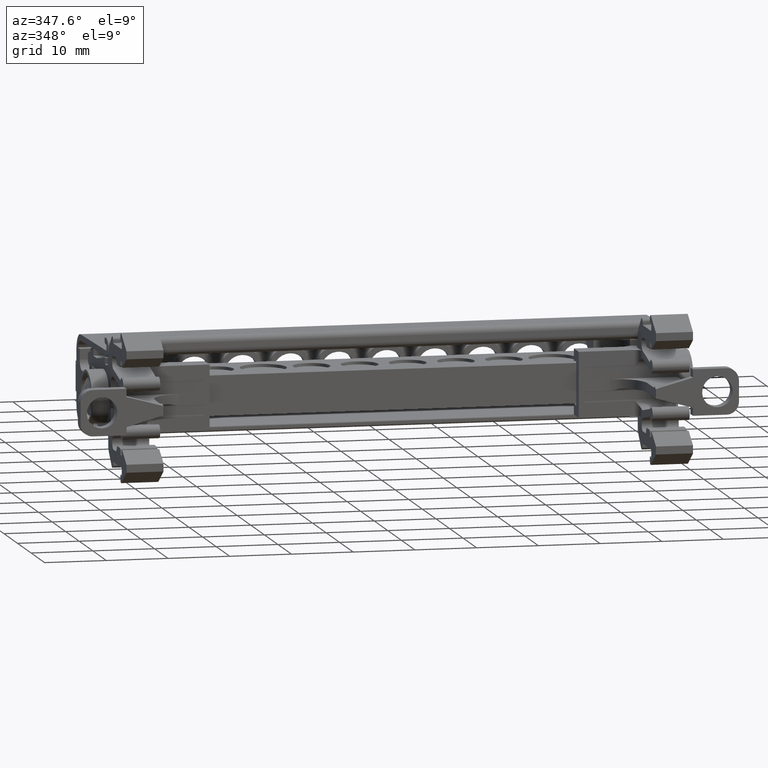
[diagram: clean part render]
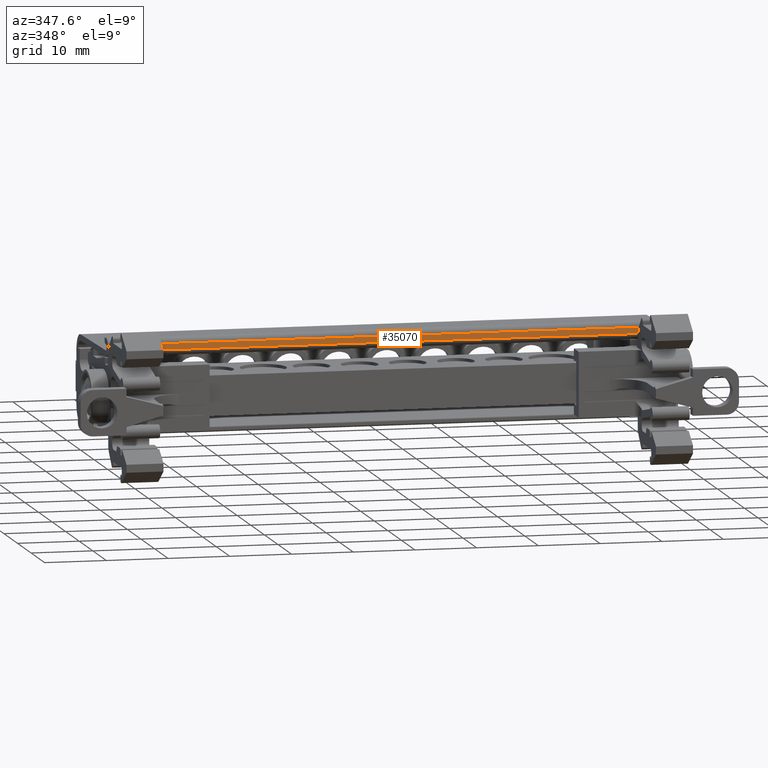
[diagram: same view with one face highlighted and labeled with its STEP entity id]
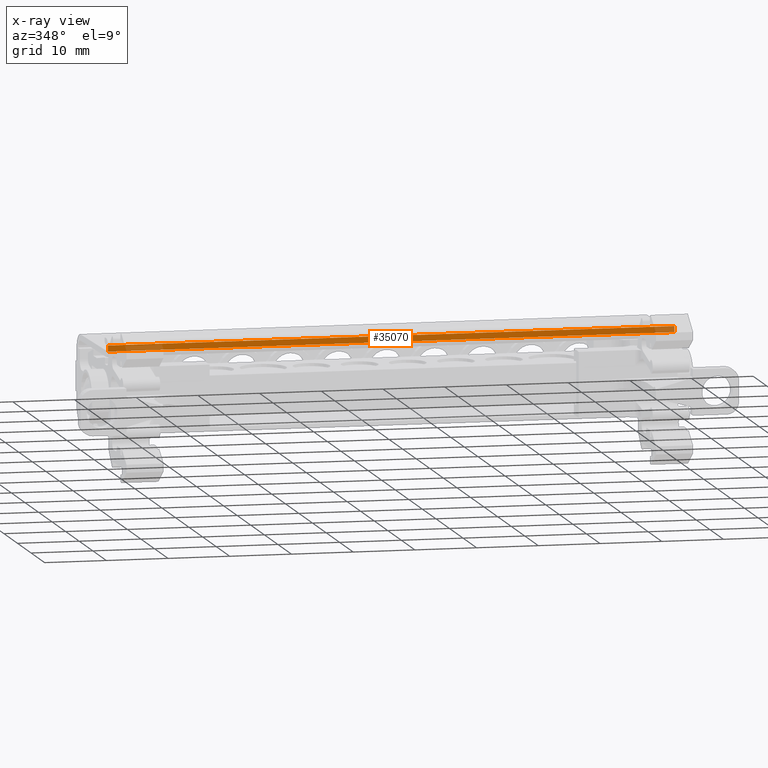
[diagram: x-ray of the same camera — body ghosted, the highlighted face saturated]
A machine part, auxiliary view. The second image highlights one B-rep face of the part: STEP entity #35070.
The next image is the same camera in x-ray: the body ghosted, the highlighted face saturated — about 9% of this face is hidden behind the body in this view.
In plain terms, the highlighted planar face has unit normal (-0, 1, -0).
Its self-contained STEP definition (entity closure, byte-faithful):
#9746 = FACE_OUTER_BOUND ( 'NONE', #20304, .T. ) ;
#9749 = CARTESIAN_POINT ( 'NONE',  ( -84.51615406934662600, -44.98918772838287300, 103.5709478047560700 ) ) ;
#9776 = DIRECTION ( 'NONE',  ( 0.0000000000000000000, 1.654659315547039900E-014, 1.000000000000000000 ) ) ;
#9791 = PLANE ( 'NONE',  #10210 ) ;
#9792 = DIRECTION ( 'NONE',  ( -1.123605221868004000E-014, 1.000000000000000000, -1.654659315547039900E-014 ) ) ;
#10210 = AXIS2_PLACEMENT_3D ( 'NONE', #9749, #9792, #9776 ) ;
#18263 = VECTOR ( 'NONE', #31493, 1000.000000000000000 ) ;
#18522 = VECTOR ( 'NONE', #31165, 1000.000000000000000 ) ;
#18560 = VECTOR ( 'NONE', #32509, 1000.000000000000000 ) ;
#18704 = VECTOR ( 'NONE', #32659, 1000.000000000000000 ) ;
#20304 = EDGE_LOOP ( 'NONE', ( #24413, #24426, #24468, #24398 ) ) ;
#21991 = EDGE_CURVE ( 'NONE', #29647, #29660, #31527, .T. ) ;
#22043 = EDGE_CURVE ( 'NONE', #29660, #29871, #31617, .T. ) ;
#22052 = EDGE_CURVE ( 'NONE', #29647, #29671, #32474, .T. ) ;
#22078 = EDGE_CURVE ( 'NONE', #29871, #29671, #32638, .T. ) ;
#24398 = ORIENTED_EDGE ( 'NONE', *, *, #21991, .F. ) ;
#24413 = ORIENTED_EDGE ( 'NONE', *, *, #22052, .T. ) ;
#24426 = ORIENTED_EDGE ( 'NONE', *, *, #22078, .F. ) ;
#24468 = ORIENTED_EDGE ( 'NONE', *, *, #22043, .F. ) ;
#26550 = CARTESIAN_POINT ( 'NONE',  ( -83.26662755420629500, -44.98918772838285200, 103.5534993518117200 ) ) ;
#26639 = CARTESIAN_POINT ( 'NONE',  ( 8.529243657139206300, -44.98918772838196400, 104.5399726472496600 ) ) ;
#26650 = CARTESIAN_POINT ( 'NONE',  ( 8.529243657139222300, -44.98918772838196400, 103.5534993518106600 ) ) ;
#26751 = CARTESIAN_POINT ( 'NONE',  ( -83.26662755420629500, -44.98918772838284500, 104.5399726472502000 ) ) ;
#29647 = VERTEX_POINT ( 'NONE', #26650 ) ;
#29660 = VERTEX_POINT ( 'NONE', #26550 ) ;
#29671 = VERTEX_POINT ( 'NONE', #26639 ) ;
#29871 = VERTEX_POINT ( 'NONE', #26751 ) ;
#31165 = DIRECTION ( 'NONE',  ( 0.0000000000000000000, 1.654659315547039900E-014, 1.000000000000000000 ) ) ;
#31493 = DIRECTION ( 'NONE',  ( -1.000000000000000000, -1.123605221867979900E-014, 1.149507329944757400E-014 ) ) ;
#31523 = CARTESIAN_POINT ( 'NONE',  ( -84.41619194813539200, -44.98918772838285900, 103.5534993518115400 ) ) ;
#31527 = LINE ( 'NONE', #31523, #18263 ) ;
#31617 = LINE ( 'NONE', #31622, #18522 ) ;
#31622 = CARTESIAN_POINT ( 'NONE',  ( -83.26662755420629500, -44.98918772838285900, 103.5709478047560700 ) ) ;
#32474 = LINE ( 'NONE', #32485, #18560 ) ;
#32485 = CARTESIAN_POINT ( 'NONE',  ( 8.529243657139206300, -44.98918772838212700, 102.2502889115879700 ) ) ;
#32509 = DIRECTION ( 'NONE',  ( 1.149507329944786500E-014, 0.0000000000000000000, 1.000000000000000000 ) ) ;
#32625 = CARTESIAN_POINT ( 'NONE',  ( -84.51615406934662600, -44.98918772838285900, 104.5399726472498000 ) ) ;
#32638 = LINE ( 'NONE', #32625, #18704 ) ;
#32659 = DIRECTION ( 'NONE',  ( 1.000000000000000000, 1.123605221868004000E-014, -1.859183847361191600E-028 ) ) ;
#35070 = ADVANCED_FACE ( 'NONE', ( #9746 ), #9791, .F. ) ;